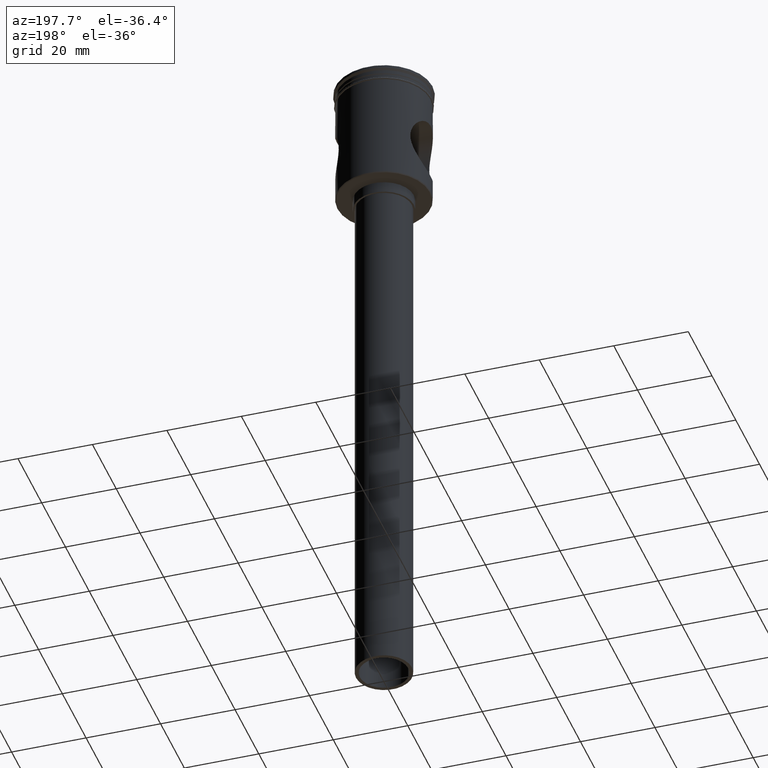
[diagram: clean part render]
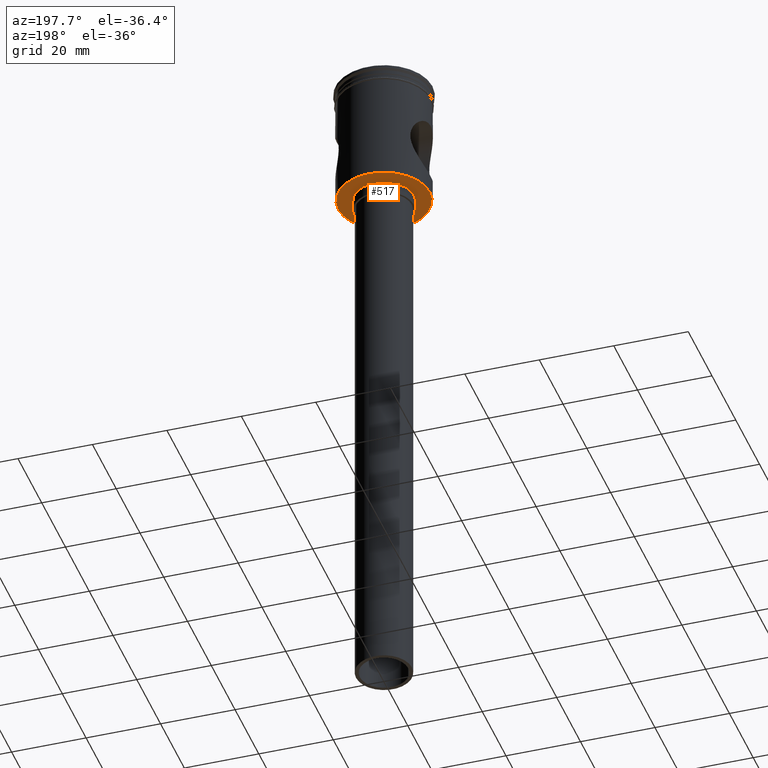
[diagram: same view with one face highlighted and labeled with its STEP entity id]
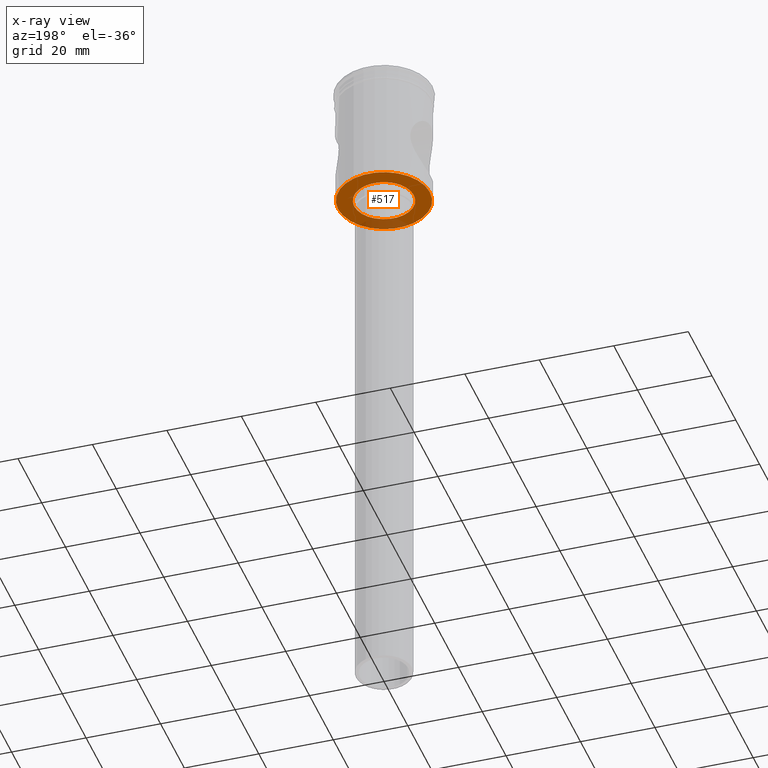
[diagram: x-ray of the same camera — body ghosted, the highlighted face saturated]
A machine part, auxiliary view. The second image highlights one B-rep face of the part: STEP entity #517.
The next image is the same camera in x-ray: the body ghosted, the highlighted face saturated — about 15% of this face is hidden behind the body in this view.
In plain terms, the highlighted planar face has unit normal (0, 0, -1).
Its self-contained STEP definition (entity closure, byte-faithful):
#24 = VERTEX_POINT ( 'NONE', #247 ) ;
#28 = AXIS2_PLACEMENT_3D ( 'NONE', #70, #562, #211 ) ;
#70 = CARTESIAN_POINT ( 'NONE',  ( 0.000000000000000000, 0.000000000000000000, -33.50000000000000000 ) ) ;
#131 = AXIS2_PLACEMENT_3D ( 'NONE', #1544, #1302, #470 ) ;
#133 = DIRECTION ( 'NONE',  ( 0.000000000000000000, 0.000000000000000000, -1.000000000000000000 ) ) ;
#163 = EDGE_LOOP ( 'NONE', ( #355, #196 ) ) ;
#196 = ORIENTED_EDGE ( 'NONE', *, *, #867, .F. ) ;
#211 = DIRECTION ( 'NONE',  ( -1.000000000000000000, 0.000000000000000000, 0.000000000000000000 ) ) ;
#231 = FACE_OUTER_BOUND ( 'NONE', #1097, .T. ) ;
#247 = CARTESIAN_POINT ( 'NONE',  ( 8.000000000000000000, 0.000000000000000000, -33.50000000000000000 ) ) ;
#251 = CARTESIAN_POINT ( 'NONE',  ( 0.000000000000000000, 0.000000000000000000, -33.50000000000000000 ) ) ;
#309 = CARTESIAN_POINT ( 'NONE',  ( -12.29999999999999361, 1.518562030942717573E-15, -33.50000000000000000 ) ) ;
#352 = PLANE ( 'NONE',  #131 ) ;
#355 = ORIENTED_EDGE ( 'NONE', *, *, #955, .F. ) ;
#426 = CARTESIAN_POINT ( 'NONE',  ( 12.29999999999999361, 0.000000000000000000, -33.50000000000000000 ) ) ;
#452 = AXIS2_PLACEMENT_3D ( 'NONE', #251, #1209, #508 ) ;
#470 = DIRECTION ( 'NONE',  ( -1.000000000000000000, 0.000000000000000000, -0.000000000000000000 ) ) ;
#496 = CIRCLE ( 'NONE', #810, 12.29999999999999361 ) ;
#498 = CIRCLE ( 'NONE', #28, 12.29999999999999361 ) ;
#508 = DIRECTION ( 'NONE',  ( -1.000000000000000000, 0.000000000000000000, 0.000000000000000000 ) ) ;
#515 = DIRECTION ( 'NONE',  ( -1.000000000000000000, 0.000000000000000000, 0.000000000000000000 ) ) ;
#517 = ADVANCED_FACE ( 'NONE', ( #231, #1429 ), #352, .T. ) ;
#562 = DIRECTION ( 'NONE',  ( 0.000000000000000000, 0.000000000000000000, -1.000000000000000000 ) ) ;
#594 = DIRECTION ( 'NONE',  ( 0.000000000000000000, 0.000000000000000000, -1.000000000000000000 ) ) ;
#772 = ORIENTED_EDGE ( 'NONE', *, *, #908, .T. ) ;
#810 = AXIS2_PLACEMENT_3D ( 'NONE', #1427, #133, #515 ) ;
#867 = EDGE_CURVE ( 'NONE', #1140, #24, #874, .T. ) ;
#874 = CIRCLE ( 'NONE', #1298, 8.000000000000000000 ) ;
#896 = ORIENTED_EDGE ( 'NONE', *, *, #1417, .T. ) ;
#908 = EDGE_CURVE ( 'NONE', #1493, #1430, #496, .T. ) ;
#954 = CARTESIAN_POINT ( 'NONE',  ( 0.000000000000000000, 0.000000000000000000, -33.50000000000000000 ) ) ;
#955 = EDGE_CURVE ( 'NONE', #24, #1140, #1128, .T. ) ;
#1078 = DIRECTION ( 'NONE',  ( -1.000000000000000000, 0.000000000000000000, 0.000000000000000000 ) ) ;
#1097 = EDGE_LOOP ( 'NONE', ( #896, #772 ) ) ;
#1128 = CIRCLE ( 'NONE', #452, 8.000000000000000000 ) ;
#1140 = VERTEX_POINT ( 'NONE', #1418 ) ;
#1209 = DIRECTION ( 'NONE',  ( 0.000000000000000000, 0.000000000000000000, -1.000000000000000000 ) ) ;
#1298 = AXIS2_PLACEMENT_3D ( 'NONE', #954, #594, #1078 ) ;
#1302 = DIRECTION ( 'NONE',  ( 0.000000000000000000, 0.000000000000000000, -1.000000000000000000 ) ) ;
#1417 = EDGE_CURVE ( 'NONE', #1430, #1493, #498, .T. ) ;
#1418 = CARTESIAN_POINT ( 'NONE',  ( -8.000000000000000000, 9.797174393178825657E-16, -33.50000000000000000 ) ) ;
#1427 = CARTESIAN_POINT ( 'NONE',  ( 0.000000000000000000, 0.000000000000000000, -33.50000000000000000 ) ) ;
#1429 = FACE_BOUND ( 'NONE', #163, .T. ) ;
#1430 = VERTEX_POINT ( 'NONE', #426 ) ;
#1493 = VERTEX_POINT ( 'NONE', #309 ) ;
#1544 = CARTESIAN_POINT ( 'NONE',  ( 0.000000000000000000, 12.49999999999999289, -33.50000000000000000 ) ) ;